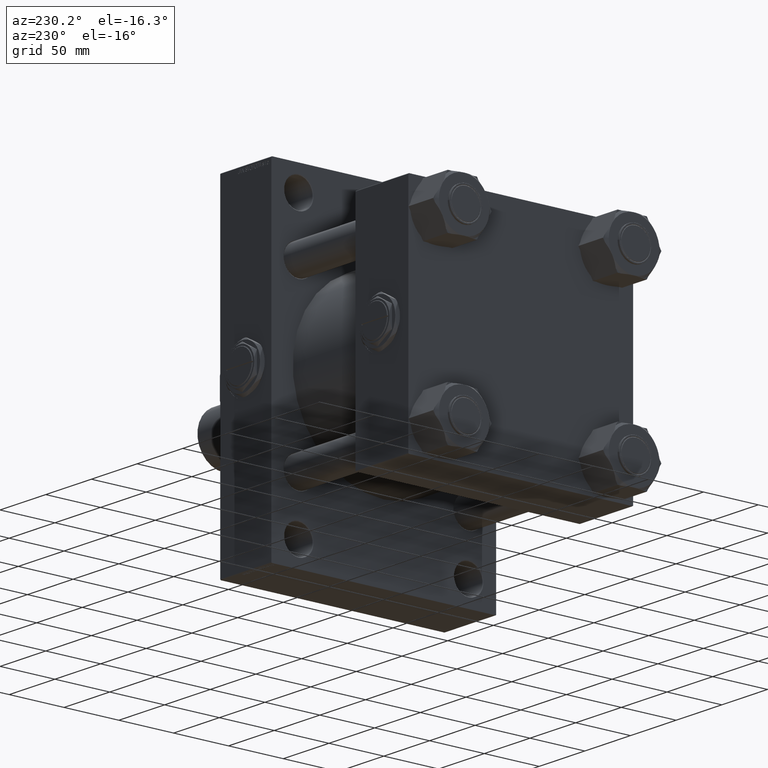
[diagram: clean part render]
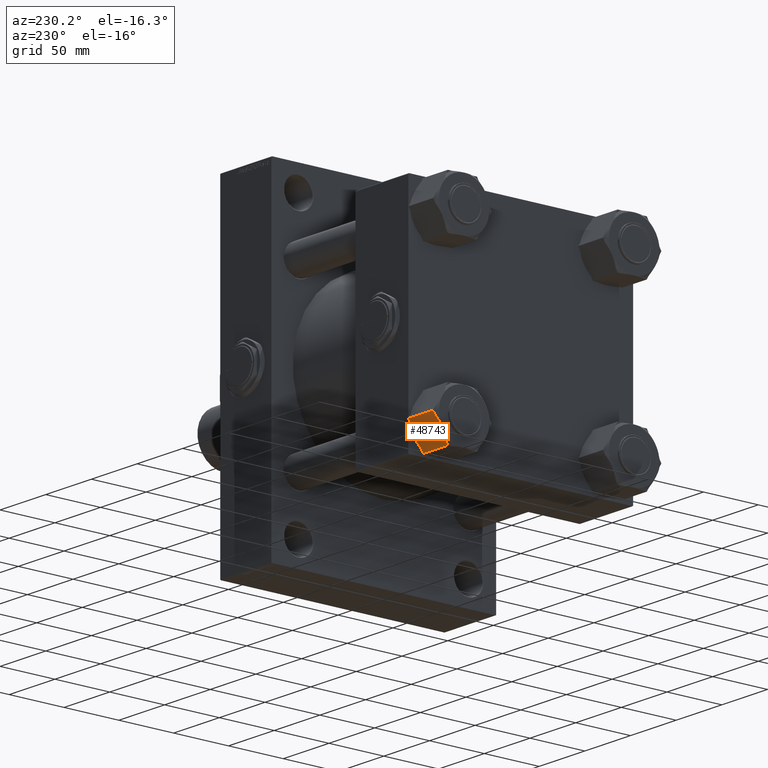
[diagram: same view with one face highlighted and labeled with its STEP entity id]
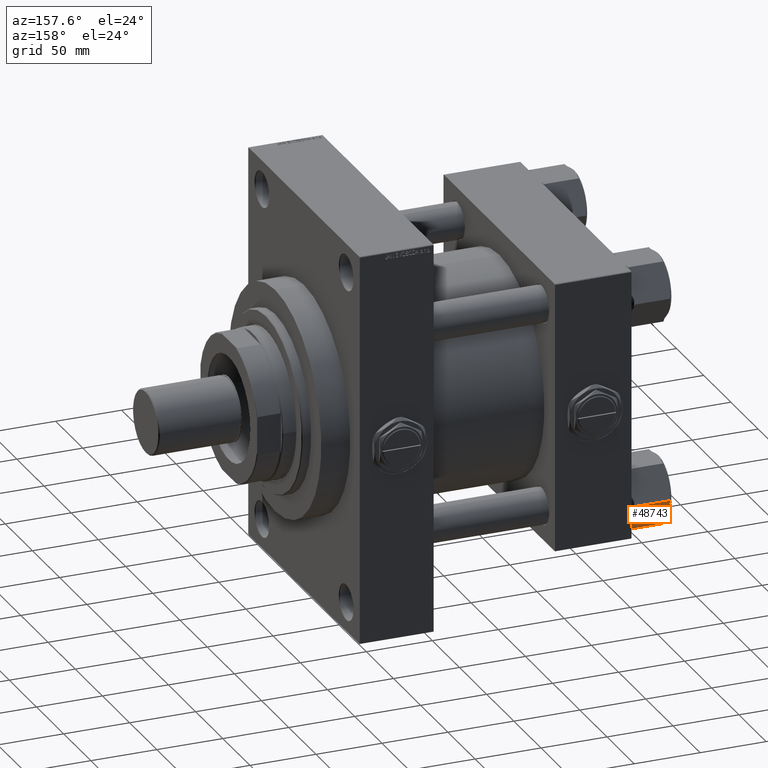
[diagram: same view with one face highlighted and labeled with its STEP entity id]
A machine part, auxiliary view. The second image highlights one B-rep face of the part: STEP entity #48743.
A second angle (auxiliary view) of the same face is appended — the face is thin or edge-on in the first view.
In plain terms, the highlighted planar face has unit normal (0, -0.866, 0.5).
Its self-contained STEP definition (entity closure, byte-faithful):
#104 = DIRECTION ( 'NONE',  ( -0.000000000000000000, -0.000000000000000000, 1.000000000000000000 ) ) ;
#861 = EDGE_CURVE ( 'NONE', #23742, #25847, #18036, .T. ) ;
#905 = CARTESIAN_POINT ( 'NONE',  ( -23.27184413332395252, -5.799176072742724841, -30.08229428973085362 ) ) ;
#1270 = CARTESIAN_POINT ( 'NONE',  ( -19.96500000000001762, -11.52679812437087747, 0.000000000000000000 ) ) ;
#1703 = EDGE_CURVE ( 'NONE', #44749, #17874, #29742, .T. ) ;
#1707 = CARTESIAN_POINT ( 'NONE',  ( -15.06055342074746051, -20.02154878264367355, -28.99999999999999645 ) ) ;
#3007 = CARTESIAN_POINT ( 'NONE',  ( -20.81146273741196140, -10.06068165645953805, -31.00000000000002132 ) ) ;
#3242 = CARTESIAN_POINT ( 'NONE',  ( -17.06315302221505092, -16.55294452568460173, -0.7059057375046209337 ) ) ;
#5100 = VECTOR ( 'NONE', #9414, 1000.000000000000000 ) ;
#5186 = ORIENTED_EDGE ( 'NONE', *, *, #33414, .T. ) ;
#6603 = CARTESIAN_POINT ( 'NONE',  ( -19.96500000000001762, -11.52679812437087747, -31.00000000000000000 ) ) ;
#7418 = ORIENTED_EDGE ( 'NONE', *, *, #45226, .F. ) ;
#7422 = CARTESIAN_POINT ( 'NONE',  ( -13.31000000000000405, -23.05359624874176205, -31.00000000000000000 ) ) ;
#7522 = CARTESIAN_POINT ( 'NONE',  ( -20.38949137558736524, -10.79155749447876289, -0.01178697739764910171 ) ) ;
#7679 = CARTESIAN_POINT ( 'NONE',  ( -26.62000000000000455, 1.322753825639812332E-14, -2.000000000000001776 ) ) ;
#9318 = VERTEX_POINT ( 'NONE', #1270 ) ;
#9414 = DIRECTION ( 'NONE',  ( -0.4999999999999996669, 0.8660254037844388186, 0.000000000000000000 ) ) ;
#9916 = CARTESIAN_POINT ( 'NONE',  ( -15.06055342074746051, -20.02154878264367355, -28.99999999999999645 ) ) ;
#10198 = EDGE_CURVE ( 'NONE', #12376, #34832, #22228, .T. ) ;
#11785 = CARTESIAN_POINT ( 'NONE',  ( -24.86944657925255342, -3.032047466098072963, -28.99999999999999645 ) ) ;
#11915 = EDGE_LOOP ( 'NONE', ( #34999, #5186, #40233, #7418, #27183, #26822, #49751, #44471, #12175, #27514 ) ) ;
#12175 = ORIENTED_EDGE ( 'NONE', *, *, #861, .F. ) ;
#12354 = CARTESIAN_POINT ( 'NONE',  ( -13.31000000000000405, -23.05359624874176205, -28.99999999999999645 ) ) ;
#12376 = VERTEX_POINT ( 'NONE', #39546 ) ;
#12617 = CARTESIAN_POINT ( 'NONE',  ( -24.07590164194817817, -4.406507615598305172, -29.58973526236487928 ) ) ;
#12847 = VECTOR ( 'NONE', #38513, 1000.000000000000000 ) ;
#13417 = CARTESIAN_POINT ( 'NONE',  ( -19.96500000000001762, -11.52679812437087747, -31.00000000000000000 ) ) ;
#15112 = CARTESIAN_POINT ( 'NONE',  ( -26.62000000000000455, 1.322753825639812332E-14, -31.00000000000000000 ) ) ;
#15150 = CARTESIAN_POINT ( 'NONE',  ( -20.81104382412701526, -10.06140723555302330, -0.05818196640764964483 ) ) ;
#15301 = VECTOR ( 'NONE', #22688, 1000.000000000000000 ) ;
#15963 = CARTESIAN_POINT ( 'NONE',  ( -13.31000000000000405, -23.05359624874176205, -2.000000000000001776 ) ) ;
#16853 = CARTESIAN_POINT ( 'NONE',  ( -26.62000000000000455, 1.322753825639812332E-14, -28.99999999999999645 ) ) ;
#16855 = VERTEX_POINT ( 'NONE', #46177 ) ;
#17236 = CARTESIAN_POINT ( 'NONE',  ( -15.84797143746254733, -18.65770077089800694, -29.61657409342406311 ) ) ;
#17874 = VERTEX_POINT ( 'NONE', #9916 ) ;
#18036 = B_SPLINE_CURVE_WITH_KNOTS ( 'NONE', 3,
 ( #22344, #3007, #49621, #24057, #905, #12617, #28126, #40341 ),
 .UNSPECIFIED., .F., .F.,
 ( 4, 2, 2, 4 ),
 ( 0.01001235240522103942, 0.01501505178013396932, 0.01751640146759043254, 0.02001775115504689923 ),
 .UNSPECIFIED. ) ;
#18254 = VECTOR ( 'NONE', #48285, 1000.000000000000000 ) ;
#18409 = CARTESIAN_POINT ( 'NONE',  ( -13.31000000000000405, -23.05359624874176205, -2.000000000000001776 ) ) ;
#18761 = CARTESIAN_POINT ( 'NONE',  ( -16.65815586667606141, -17.25442017599901234, -0.9177057102691476009 ) ) ;
#20028 = CARTESIAN_POINT ( 'NONE',  ( -18.90939003826338194, -13.35516821107453644, -30.90723860914737386 ) ) ;
#20351 = B_SPLINE_CURVE_WITH_KNOTS ( 'NONE', 3,
 ( #1707, #17236, #47035, #23863, #39390, #20028, #29429, #25126, #29179, #13417 ),
 .UNSPECIFIED., .F., .F.,
 ( 4, 2, 2, 2, 4 ),
 ( 5.412492187688563870E-07, 0.005006446827219904021, 0.007509399616220476491, 0.008760876010720758389, 0.01001235240522103942 ),
 .UNSPECIFIED. ) ;
#20492 = VECTOR ( 'NONE', #39580, 1000.000000000000000 ) ;
#21306 = CARTESIAN_POINT ( 'NONE',  ( -24.86944657925254987, -3.032047466098083177, -2.000000000000000000 ) ) ;
#21523 = LINE ( 'NONE', #37568, #18254 ) ;
#22228 = LINE ( 'NONE', #18409, #12847 ) ;
#22292 = VERTEX_POINT ( 'NONE', #16853 ) ;
#22310 = B_SPLINE_CURVE_WITH_KNOTS ( 'NONE', 3,
 ( #25677, #25921, #38126, #3242, #18761, #48865, #27161, #22831 ),
 .UNSPECIFIED., .F., .F.,
 ( 4, 2, 2, 4 ),
 ( 0.01001235240522103942, 0.01501505178013396238, 0.01751640146759042907, 0.02001775115504689229 ),
 .UNSPECIFIED. ) ;
#22344 = CARTESIAN_POINT ( 'NONE',  ( -19.96500000000001762, -11.52679812437087747, -31.00000000000000000 ) ) ;
#22531 = CARTESIAN_POINT ( 'NONE',  ( -20.17675130770547298, -11.16003410085585124, 2.535969586693416292E-14 ) ) ;
#22688 = DIRECTION ( 'NONE',  ( 0.4999999999999996669, -0.8660254037844388186, 0.000000000000000000 ) ) ;
#22817 = EDGE_CURVE ( 'NONE', #25847, #22292, #31942, .T. ) ;
#22831 = CARTESIAN_POINT ( 'NONE',  ( -15.06055342074746584, -20.02154878264366289, -2.000000000000000000 ) ) ;
#22946 = DIRECTION ( 'NONE',  ( 0.8660254037844388186, 0.4999999999999996669, 0.000000000000000000 ) ) ;
#23554 = CARTESIAN_POINT ( 'NONE',  ( -21.02060996173662843, -9.698428037667206070, -0.09276139085262687101 ) ) ;
#23742 = VERTEX_POINT ( 'NONE', #6603 ) ;
#23863 = CARTESIAN_POINT ( 'NONE',  ( -17.87195049697043814, -15.15206620637486523, -30.63660360727165965 ) ) ;
#24057 = CARTESIAN_POINT ( 'NONE',  ( -22.86684697778496300, -6.500651723057134568, -30.29409426249537773 ) ) ;
#25126 = CARTESIAN_POINT ( 'NONE',  ( -19.54050862441264869, -12.26203875426297962, -30.98821302260235200 ) ) ;
#25677 = CARTESIAN_POINT ( 'NONE',  ( -19.96500000000001762, -11.52679812437087747, 0.000000000000000000 ) ) ;
#25847 = VERTEX_POINT ( 'NONE', #11785 ) ;
#25921 = CARTESIAN_POINT ( 'NONE',  ( -19.11853726258805253, -12.99291459228220802, 2.486436982233420767E-14 ) ) ;
#26822 = ORIENTED_EDGE ( 'NONE', *, *, #45580, .F. ) ;
#27161 = CARTESIAN_POINT ( 'NONE',  ( -15.45439374533417975, -19.33939733039004238, -1.691610128380183209 ) ) ;
#27183 = ORIENTED_EDGE ( 'NONE', *, *, #36062, .F. ) ;
#27514 = ORIENTED_EDGE ( 'NONE', *, *, #34982, .F. ) ;
#28126 = CARTESIAN_POINT ( 'NONE',  ( -24.47560625466584483, -3.714198918351685030, -29.30838987161982345 ) ) ;
#29179 = CARTESIAN_POINT ( 'NONE',  ( -19.75324869229453739, -11.89356214788588950, -31.00000000000002487 ) ) ;
#29187 = CARTESIAN_POINT ( 'NONE',  ( -22.05804950302956158, -7.901530042366876394, -0.3633963927283424544 ) ) ;
#29429 = CARTESIAN_POINT ( 'NONE',  ( -19.11895617587300222, -12.99218901318872099, -30.94181803359235516 ) ) ;
#29742 = LINE ( 'NONE', #48373, #5100 ) ;
#31942 = LINE ( 'NONE', #12354, #20492 ) ;
#33008 = CARTESIAN_POINT ( 'NONE',  ( -24.08202856253746305, -4.395895477843739130, -1.383425906575931341 ) ) ;
#33414 = EDGE_CURVE ( 'NONE', #44749, #34832, #21523, .T. ) ;
#34832 = VERTEX_POINT ( 'NONE', #15963 ) ;
#34982 = EDGE_CURVE ( 'NONE', #17874, #23742, #20351, .T. ) ;
#34999 = ORIENTED_EDGE ( 'NONE', *, *, #1703, .F. ) ;
#36062 = EDGE_CURVE ( 'NONE', #16855, #9318, #48870, .T. ) ;
#36575 = AXIS2_PLACEMENT_3D ( 'NONE', #7422, #22946, #38732 ) ;
#37568 = CARTESIAN_POINT ( 'NONE',  ( -13.31000000000000405, -23.05359624874176205, -31.00000000000000000 ) ) ;
#38126 = CARTESIAN_POINT ( 'NONE',  ( -18.28824786674792691, -14.43101801086297620, -0.1878618656617356830 ) ) ;
#38328 = CARTESIAN_POINT ( 'NONE',  ( -19.96500000000001762, -11.52679812437087747, 0.000000000000000000 ) ) ;
#38513 = DIRECTION ( 'NONE',  ( 0.4999999999999996669, -0.8660254037844388186, 0.000000000000000000 ) ) ;
#38732 = DIRECTION ( 'NONE',  ( -0.4999999999999996669, 0.8660254037844388186, 0.000000000000000000 ) ) ;
#39390 = CARTESIAN_POINT ( 'NONE',  ( -18.28415441059625834, -14.43810808489622133, -30.77092979404567785 ) ) ;
#39546 = CARTESIAN_POINT ( 'NONE',  ( -15.06055342074746584, -20.02154878264366289, -2.000000000000000000 ) ) ;
#39580 = DIRECTION ( 'NONE',  ( -0.4999999999999996669, 0.8660254037844388186, 0.000000000000000000 ) ) ;
#39771 = VECTOR ( 'NONE', #104, 1000.000000000000000 ) ;
#40233 = ORIENTED_EDGE ( 'NONE', *, *, #10198, .F. ) ;
#40322 = CARTESIAN_POINT ( 'NONE',  ( -13.31000000000000405, -23.05359624874176205, -28.99999999999999645 ) ) ;
#40341 = CARTESIAN_POINT ( 'NONE',  ( -24.86944657925255342, -3.032047466098072963, -28.99999999999999645 ) ) ;
#42043 = CARTESIAN_POINT ( 'NONE',  ( -13.31000000000000405, -23.05359624874176205, -2.000000000000001776 ) ) ;
#42296 = FACE_OUTER_BOUND ( 'NONE', #11915, .T. ) ;
#44471 = ORIENTED_EDGE ( 'NONE', *, *, #22817, .F. ) ;
#44749 = VERTEX_POINT ( 'NONE', #40322 ) ;
#45226 = EDGE_CURVE ( 'NONE', #9318, #12376, #22310, .T. ) ;
#45580 = EDGE_CURVE ( 'NONE', #48752, #16855, #45874, .T. ) ;
#45874 = LINE ( 'NONE', #42043, #15301 ) ;
#46177 = CARTESIAN_POINT ( 'NONE',  ( -24.86944657925254987, -3.032047466098083177, -2.000000000000000000 ) ) ;
#46215 = CARTESIAN_POINT ( 'NONE',  ( -21.64584558940375558, -8.615488163845524738, -0.2290702059543221203 ) ) ;
#46632 = PLANE ( 'NONE',  #36575 ) ;
#47035 = CARTESIAN_POINT ( 'NONE',  ( -16.64769565855987210, -17.27253778791400052, -30.11739750492499823 ) ) ;
#48285 = DIRECTION ( 'NONE',  ( -0.000000000000000000, -0.000000000000000000, 1.000000000000000000 ) ) ;
#48373 = CARTESIAN_POINT ( 'NONE',  ( -13.31000000000000405, -23.05359624874176205, -28.99999999999999645 ) ) ;
#48401 = EDGE_CURVE ( 'NONE', #22292, #48752, #50020, .T. ) ;
#48564 = CARTESIAN_POINT ( 'NONE',  ( -23.28230434144013472, -5.781058460827749101, -0.8826024950749967735 ) ) ;
#48743 = ADVANCED_FACE ( 'NONE', ( #42296 ), #46632, .F. ) ;
#48752 = VERTEX_POINT ( 'NONE', #7679 ) ;
#48865 = CARTESIAN_POINT ( 'NONE',  ( -15.85409835805183221, -18.64708863314343290, -1.410264737635122945 ) ) ;
#48870 = B_SPLINE_CURVE_WITH_KNOTS ( 'NONE', 3,
 ( #21306, #33008, #48564, #29187, #46215, #23554, #15150, #7522, #22531, #38328 ),
 .UNSPECIFIED., .F., .F.,
 ( 4, 2, 2, 2, 4 ),
 ( 5.412492187803855642E-07, 0.005006446827219912694, 0.007509399616220479093, 0.008760876010720760124, 0.01001235240522103942 ),
 .UNSPECIFIED. ) ;
#49621 = CARTESIAN_POINT ( 'NONE',  ( -21.64175213325209413, -8.622578237878768093, -30.81213813433826587 ) ) ;
#49751 = ORIENTED_EDGE ( 'NONE', *, *, #48401, .F. ) ;
#50020 = LINE ( 'NONE', #15112, #39771 ) ;